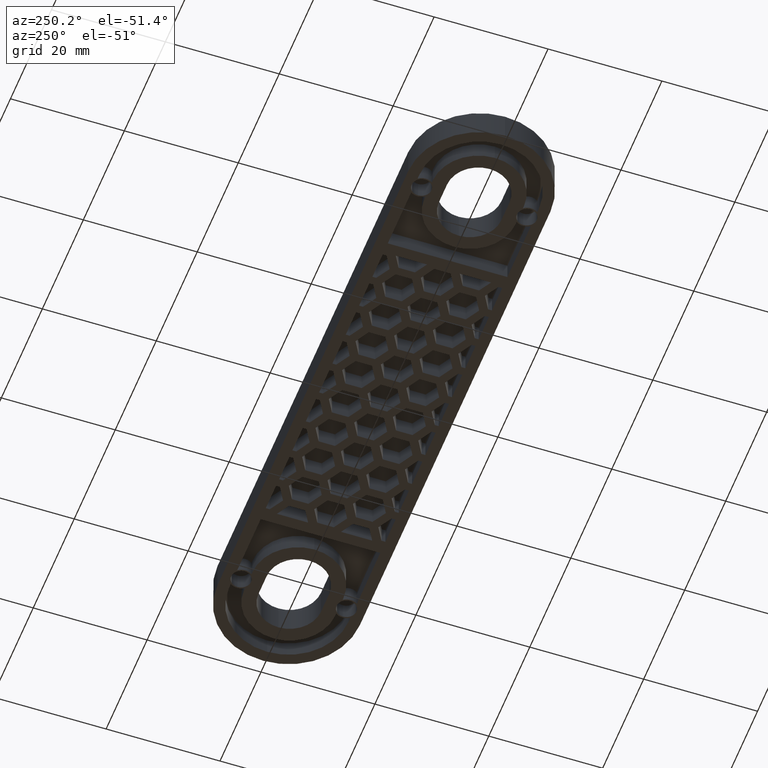
[diagram: clean part render]
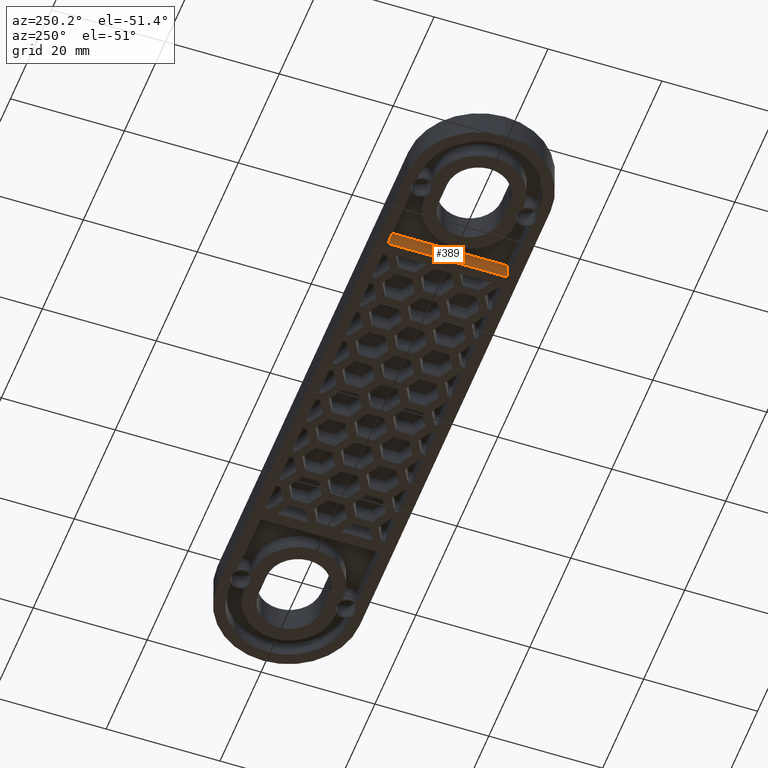
[diagram: same view with one face highlighted and labeled with its STEP entity id]
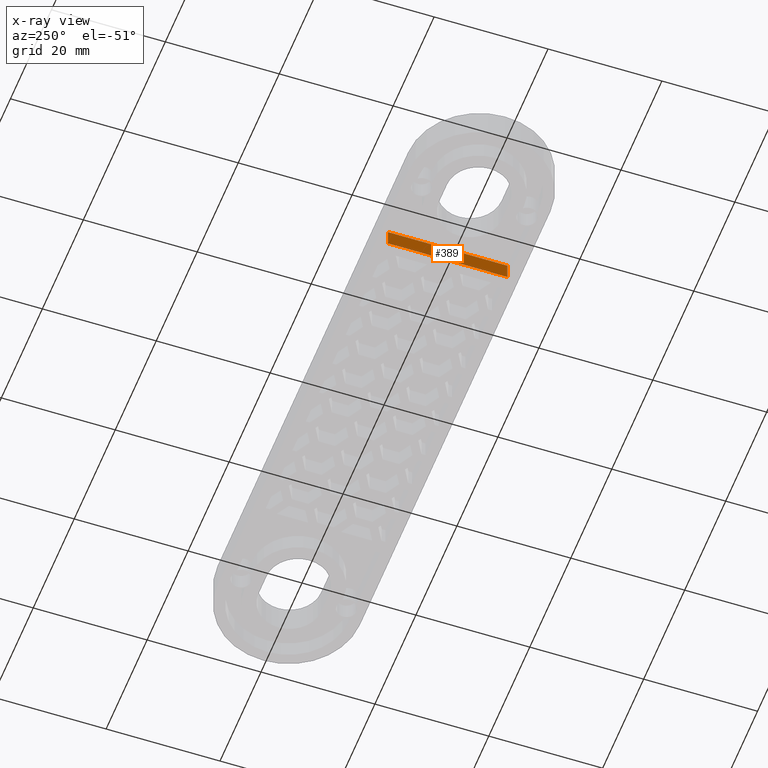
[diagram: x-ray of the same camera — body ghosted, the highlighted face saturated]
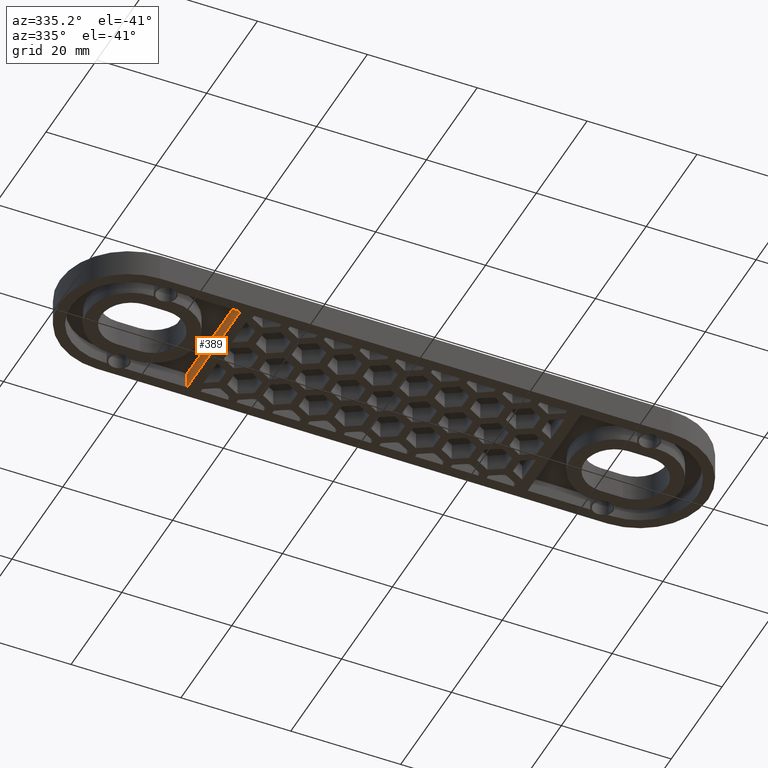
[diagram: same view with one face highlighted and labeled with its STEP entity id]
A machine part, auxiliary view. The second image highlights one B-rep face of the part: STEP entity #389.
The next image is the same camera in x-ray: the body ghosted, the highlighted face saturated — about 0% of this face is hidden behind the body in this view.
A second angle (auxiliary view) of the same face is appended — the face is thin or edge-on in the first view.
In plain terms, the highlighted planar face has unit normal (-1, 0, 0).
Its self-contained STEP definition (entity closure, byte-faithful):
#389 = ADVANCED_FACE( '', ( #1185 ), #1186, .T. );
#1185 = FACE_OUTER_BOUND( '', #2077, .T. );
#1186 = PLANE( '', #2078 );
#2077 = EDGE_LOOP( '', ( #4824, #4825, #4826, #4827 ) );
#2078 = AXIS2_PLACEMENT_3D( '', #4828, #4829, #4830 );
#4824 = ORIENTED_EDGE( '', *, *, #5687, .F. );
#4825 = ORIENTED_EDGE( '', *, *, #5645, .F. );
#4826 = ORIENTED_EDGE( '', *, *, #5963, .T. );
#4827 = ORIENTED_EDGE( '', *, *, #6539, .T. );
#4828 = CARTESIAN_POINT( '', ( -31.0000000000000, -10.5000000000000, 3.00000000000000 ) );
#4829 = DIRECTION( '', ( -1.00000000000000, 0.000000000000000, 0.000000000000000 ) );
#4830 = DIRECTION( '', ( 0.000000000000000, -1.00000000000000, 6.12303176911189E-017 ) );
#5645 = EDGE_CURVE( '', #6752, #6754, #6755, .T. );
#5687 = EDGE_CURVE( '', #6754, #6819, #6833, .T. );
#5963 = EDGE_CURVE( '', #6752, #7382, #7384, .T. );
#6539 = EDGE_CURVE( '', #7382, #6819, #8252, .T. );
#6752 = VERTEX_POINT( '', #8528 );
#6754 = VERTEX_POINT( '', #8531 );
#6755 = LINE( '', #8532, #8533 );
#6819 = VERTEX_POINT( '', #8613 );
#6833 = LINE( '', #8630, #8631 );
#7382 = VERTEX_POINT( '', #9442 );
#7384 = LINE( '', #9445, #9446 );
#8252 = LINE( '', #10879, #10880 );
#8528 = CARTESIAN_POINT( '', ( -31.0000000000000, -10.5000000000000, 3.00000000000000 ) );
#8531 = CARTESIAN_POINT( '', ( -31.0000000000000, -10.5000000000000, 6.42918335756748E-016 ) );
#8532 = CARTESIAN_POINT( '', ( -31.0000000000000, -10.5000000000000, 3.00000000000000 ) );
#8533 = VECTOR( '', #11133, 1000.00000000000 );
#8613 = CARTESIAN_POINT( '', ( -31.0000000000000, 10.5000000000000, -6.42918335756748E-016 ) );
#8630 = CARTESIAN_POINT( '', ( -31.0000000000000, -10.5000000000000, 6.42918335756748E-016 ) );
#8631 = VECTOR( '', #11219, 1000.00000000000 );
#9442 = CARTESIAN_POINT( '', ( -31.0000000000000, 10.5000000000000, 3.00000000000000 ) );
#9445 = CARTESIAN_POINT( '', ( -31.0000000000000, -10.5000000000000, 3.00000000000000 ) );
#9446 = VECTOR( '', #11519, 1000.00000000000 );
#10879 = CARTESIAN_POINT( '', ( -31.0000000000000, 10.5000000000000, 3.00000000000000 ) );
#10880 = VECTOR( '', #12115, 1000.00000000000 );
#11133 = DIRECTION( '', ( 0.000000000000000, -6.12303176911189E-017, -1.00000000000000 ) );
#11219 = DIRECTION( '', ( 0.000000000000000, 1.00000000000000, -6.12303176911189E-017 ) );
#11519 = DIRECTION( '', ( 0.000000000000000, 1.00000000000000, -6.12303176911189E-017 ) );
#12115 = DIRECTION( '', ( 0.000000000000000, -6.12303176911189E-017, -1.00000000000000 ) );